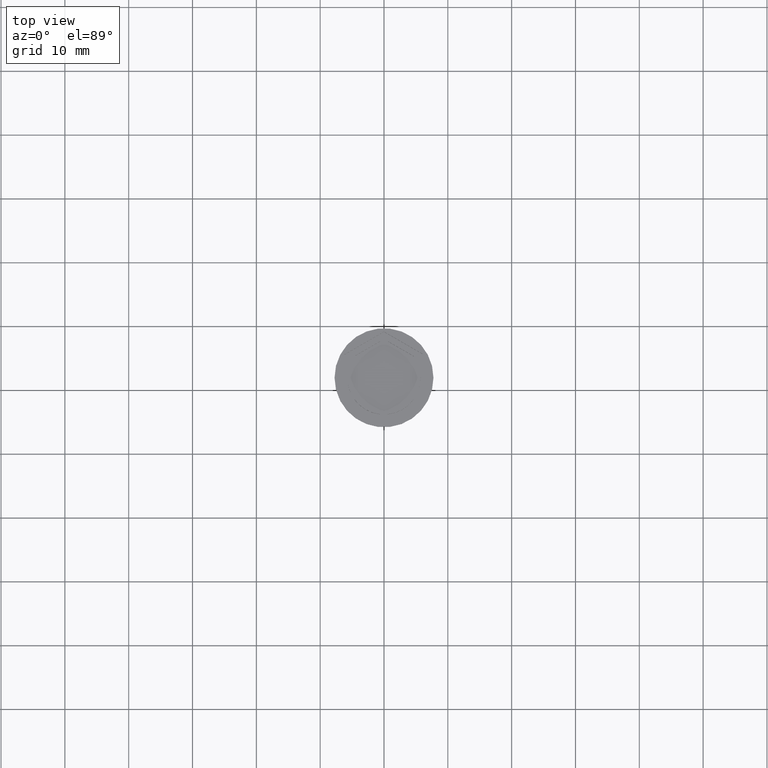
[diagram: clean part render]
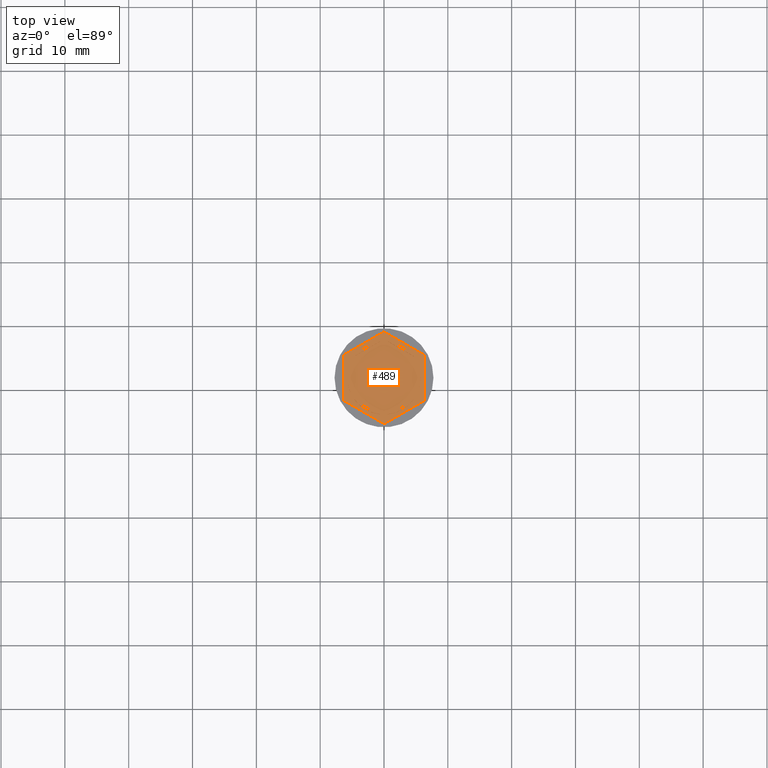
[diagram: same view with one face highlighted and labeled with its STEP entity id]
A machine part, top view. The second image highlights one B-rep face of the part: STEP entity #489.
In plain terms, the highlighted planar face has unit normal (0, 0, 1).
Its self-contained STEP definition (entity closure, byte-faithful):
#6 = VERTEX_POINT ( 'NONE', #261 ) ;
#9 = VERTEX_POINT ( 'NONE', #1690 ) ;
#12 = LINE ( 'NONE', #1985, #438 ) ;
#22 = CARTESIAN_POINT ( 'NONE',  ( 0.000000000000000000, 0.000000000000000000, -1.000000000000000000 ) ) ;
#34 = EDGE_CURVE ( 'NONE', #762, #6, #965, .T. ) ;
#41 = VERTEX_POINT ( 'NONE', #1351 ) ;
#69 = EDGE_CURVE ( 'NONE', #395, #1867, #1545, .T. ) ;
#92 = LINE ( 'NONE', #1496, #640 ) ;
#98 = VERTEX_POINT ( 'NONE', #2242 ) ;
#131 = VERTEX_POINT ( 'NONE', #1730 ) ;
#152 = PLANE ( 'NONE',  #977 ) ;
#167 = VERTEX_POINT ( 'NONE', #292 ) ;
#219 = DIRECTION ( 'NONE',  ( 0.000000000000000000, 0.000000000000000000, 1.000000000000000000 ) ) ;
#225 = VERTEX_POINT ( 'NONE', #2113 ) ;
#239 = EDGE_CURVE ( 'NONE', #1867, #395, #705, .T. ) ;
#245 = DIRECTION ( 'NONE',  ( 1.000000000000000000, 0.000000000000000000, 0.000000000000000000 ) ) ;
#261 = CARTESIAN_POINT ( 'NONE',  ( 5.249999999999997335, -2.345207879911720639, -1.000000000000000888 ) ) ;
#272 = DIRECTION ( 'NONE',  ( -1.430775808321103440E-16, -1.000000000000000000, 0.000000000000000000 ) ) ;
#275 = EDGE_LOOP ( 'NONE', ( #937, #1196 ) ) ;
#292 = CARTESIAN_POINT ( 'NONE',  ( 4.656009601158988431, 3.374029429912448919, -1.000000000000000888 ) ) ;
#314 = DIRECTION ( 'NONE',  ( 1.000000000000000000, 0.000000000000000000, 0.000000000000000000 ) ) ;
#319 = EDGE_CURVE ( 'NONE', #98, #1942, #678, .T. ) ;
#329 = ORIENTED_EDGE ( 'NONE', *, *, #1993, .F. ) ;
#355 = VERTEX_POINT ( 'NONE', #1021 ) ;
#364 = AXIS2_PLACEMENT_3D ( 'NONE', #839, #2261, #636 ) ;
#374 = DIRECTION ( 'NONE',  ( 0.8660254037844387076, 0.4999999999999999445, -0.000000000000000000 ) ) ;
#395 = VERTEX_POINT ( 'NONE', #1543 ) ;
#406 = AXIS2_PLACEMENT_3D ( 'NONE', #2063, #1760, #1907 ) ;
#411 = EDGE_CURVE ( 'NONE', #1942, #98, #1957, .T. ) ;
#438 = VECTOR ( 'NONE', #1288, 1000.000000000000000 ) ;
#468 = DIRECTION ( 'NONE',  ( 0.000000000000000000, 0.000000000000000000, 1.000000000000000000 ) ) ;
#479 = FACE_BOUND ( 'NONE', #1938, .T. ) ;
#482 = EDGE_CURVE ( 'NONE', #1413, #1412, #803, .T. ) ;
#489 = ADVANCED_FACE ( 'NONE', ( #479, #1929, #2297, #1256, #1569, #708, #672 ), #152, .T. ) ;
#535 = DIRECTION ( 'NONE',  ( -0.8660254037844388186, 0.4999999999999997224, 0.000000000000000000 ) ) ;
#562 = EDGE_CURVE ( 'NONE', #1643, #2243, #850, .T. ) ;
#621 = ORIENTED_EDGE ( 'NONE', *, *, #657, .F. ) ;
#629 = EDGE_CURVE ( 'NONE', #845, #1643, #1695, .T. ) ;
#636 = DIRECTION ( 'NONE',  ( 1.000000000000000000, 0.000000000000000000, 0.000000000000000000 ) ) ;
#640 = VECTOR ( 'NONE', #1337, 1000.000000000000000 ) ;
#654 = EDGE_CURVE ( 'NONE', #41, #9, #12, .T. ) ;
#655 = ORIENTED_EDGE ( 'NONE', *, *, #69, .F. ) ;
#657 = EDGE_CURVE ( 'NONE', #167, #131, #745, .T. ) ;
#672 = FACE_OUTER_BOUND ( 'NONE', #1457, .T. ) ;
#678 = LINE ( 'NONE', #1414, #1808 ) ;
#700 = DIRECTION ( 'NONE',  ( 1.000000000000000000, 0.000000000000000000, 0.000000000000000000 ) ) ;
#705 = CIRCLE ( 'NONE', #1172, 5.750000000000000000 ) ;
#708 = FACE_BOUND ( 'NONE', #1851, .T. ) ;
#745 = CIRCLE ( 'NONE', #939, 5.750000000000000000 ) ;
#762 = VERTEX_POINT ( 'NONE', #926 ) ;
#789 = VECTOR ( 'NONE', #1833, 1000.000000000000114 ) ;
#790 = CARTESIAN_POINT ( 'NONE',  ( -6.249999999999999112, -3.608439182435161374, -1.000000000000000000 ) ) ;
#803 = LINE ( 'NONE', #1394, #2147 ) ;
#818 = EDGE_CURVE ( 'NONE', #1412, #1731, #970, .T. ) ;
#833 = DIRECTION ( 'NONE',  ( -0.8660254037844387076, -0.4999999999999997224, 0.000000000000000000 ) ) ;
#839 = CARTESIAN_POINT ( 'NONE',  ( 0.000000000000000000, 0.000000000000000000, -1.000000000000000000 ) ) ;
#845 = VERTEX_POINT ( 'NONE', #1156 ) ;
#850 = LINE ( 'NONE', #1764, #1659 ) ;
#853 = ORIENTED_EDGE ( 'NONE', *, *, #562, .F. ) ;
#863 = EDGE_CURVE ( 'NONE', #6, #762, #1586, .T. ) ;
#917 = CARTESIAN_POINT ( 'NONE',  ( -6.249999999999999112, -3.608439182435161374, -1.000000000000000000 ) ) ;
#923 = ORIENTED_EDGE ( 'NONE', *, *, #818, .T. ) ;
#924 = CARTESIAN_POINT ( 'NONE',  ( 5.249999999999997335, 3.031088913245537864, -1.000000000000000888 ) ) ;
#926 = CARTESIAN_POINT ( 'NONE',  ( 5.249999999999997335, 2.345207879911718862, -1.000000000000000888 ) ) ;
#937 = ORIENTED_EDGE ( 'NONE', *, *, #411, .F. ) ;
#939 = AXIS2_PLACEMENT_3D ( 'NONE', #1816, #219, #1485 ) ;
#965 = LINE ( 'NONE', #1316, #1093 ) ;
#970 = LINE ( 'NONE', #790, #1880 ) ;
#977 = AXIS2_PLACEMENT_3D ( 'NONE', #1230, #1594, #1408 ) ;
#984 = CIRCLE ( 'NONE', #1637, 5.750000000000000000 ) ;
#1021 = CARTESIAN_POINT ( 'NONE',  ( -4.656009601158989319, 3.374029429912446698, -1.000000000000000888 ) ) ;
#1079 = ORIENTED_EDGE ( 'NONE', *, *, #2009, .F. ) ;
#1093 = VECTOR ( 'NONE', #272, 1000.000000000000000 ) ;
#1153 = DIRECTION ( 'NONE',  ( -0.8660254037844384856, 0.5000000000000002220, 0.000000000000000000 ) ) ;
#1156 = CARTESIAN_POINT ( 'NONE',  ( -5.750000000000000000, 0.000000000000000000, -1.000000000000000000 ) ) ;
#1162 = EDGE_CURVE ( 'NONE', #9, #225, #2159, .T. ) ;
#1172 = AXIS2_PLACEMENT_3D ( 'NONE', #1261, #468, #700 ) ;
#1177 = VECTOR ( 'NONE', #374, 1000.000000000000000 ) ;
#1186 = CARTESIAN_POINT ( 'NONE',  ( -5.249999999999999112, -3.031088913245534311, -1.000000000000000888 ) ) ;
#1196 = ORIENTED_EDGE ( 'NONE', *, *, #319, .F. ) ;
#1229 = CARTESIAN_POINT ( 'NONE',  ( 0.000000000000000000, 0.000000000000000000, -1.000000000000000000 ) ) ;
#1230 = CARTESIAN_POINT ( 'NONE',  ( 0.000000000000000000, 0.000000000000000000, -1.000000000000000000 ) ) ;
#1243 = ORIENTED_EDGE ( 'NONE', *, *, #654, .T. ) ;
#1255 = VECTOR ( 'NONE', #535, 1000.000000000000000 ) ;
#1256 = FACE_BOUND ( 'NONE', #1871, .T. ) ;
#1261 = CARTESIAN_POINT ( 'NONE',  ( 0.000000000000000000, 0.000000000000000000, -1.000000000000000000 ) ) ;
#1271 = ORIENTED_EDGE ( 'NONE', *, *, #1638, .F. ) ;
#1287 = CARTESIAN_POINT ( 'NONE',  ( 8.673617379884035472E-16, 6.062177826491070398, -1.000000000000000888 ) ) ;
#1288 = DIRECTION ( 'NONE',  ( 2.403703357979454647E-16, 1.000000000000000000, 0.000000000000000000 ) ) ;
#1295 = ORIENTED_EDGE ( 'NONE', *, *, #1437, .F. ) ;
#1302 = ORIENTED_EDGE ( 'NONE', *, *, #863, .F. ) ;
#1316 = CARTESIAN_POINT ( 'NONE',  ( 5.249999999999996447, -3.031088913245536975, -1.000000000000000888 ) ) ;
#1337 = DIRECTION ( 'NONE',  ( 0.8660254037844385966, 0.5000000000000001110, 0.000000000000000000 ) ) ;
#1351 = CARTESIAN_POINT ( 'NONE',  ( 6.249999999999998224, -3.608439182435161374, -1.000000000000000000 ) ) ;
#1376 = ORIENTED_EDGE ( 'NONE', *, *, #482, .T. ) ;
#1394 = CARTESIAN_POINT ( 'NONE',  ( -6.249999999999999112, 3.608439182435158710, -1.000000000000000000 ) ) ;
#1408 = DIRECTION ( 'NONE',  ( 1.000000000000000000, 0.000000000000000000, -0.000000000000000000 ) ) ;
#1412 = VERTEX_POINT ( 'NONE', #917 ) ;
#1413 = VERTEX_POINT ( 'NONE', #2321 ) ;
#1414 = CARTESIAN_POINT ( 'NONE',  ( -1.734723475976807094E-15, -6.062177826491069510, -1.000000000000000888 ) ) ;
#1436 = VECTOR ( 'NONE', #1153, 1000.000000000000114 ) ;
#1437 = EDGE_CURVE ( 'NONE', #355, #1805, #1628, .T. ) ;
#1441 = LINE ( 'NONE', #924, #789 ) ;
#1452 = DIRECTION ( 'NONE',  ( 0.000000000000000000, 0.000000000000000000, 1.000000000000000000 ) ) ;
#1457 = EDGE_LOOP ( 'NONE', ( #1592, #2251, #1376, #923, #1676, #1243 ) ) ;
#1485 = DIRECTION ( 'NONE',  ( 1.000000000000000000, 0.000000000000000000, 0.000000000000000000 ) ) ;
#1496 = CARTESIAN_POINT ( 'NONE',  ( 8.729740977282959667E-16, -7.216878364870321860, -1.000000000000000000 ) ) ;
#1522 = CARTESIAN_POINT ( 'NONE',  ( -5.249999999999999112, 2.345207879911715310, -1.000000000000000888 ) ) ;
#1543 = CARTESIAN_POINT ( 'NONE',  ( -0.5939903988410105695, -5.719237309824160675, -1.000000000000000888 ) ) ;
#1545 = LINE ( 'NONE', #1186, #1436 ) ;
#1553 = CARTESIAN_POINT ( 'NONE',  ( -5.249999999999999112, -2.345207879911715310, -1.000000000000000888 ) ) ;
#1569 = FACE_BOUND ( 'NONE', #1891, .T. ) ;
#1580 = DIRECTION ( 'NONE',  ( 0.000000000000000000, -1.000000000000000000, 0.000000000000000000 ) ) ;
#1586 = CIRCLE ( 'NONE', #2187, 5.750000000000000000 ) ;
#1592 = ORIENTED_EDGE ( 'NONE', *, *, #1162, .T. ) ;
#1594 = DIRECTION ( 'NONE',  ( 0.000000000000000000, 0.000000000000000000, 1.000000000000000000 ) ) ;
#1605 = DIRECTION ( 'NONE',  ( 0.000000000000000000, 1.000000000000000000, 0.000000000000000000 ) ) ;
#1628 = LINE ( 'NONE', #1287, #1177 ) ;
#1631 = CARTESIAN_POINT ( 'NONE',  ( 6.250000000000000000, 3.608439182435161374, -1.000000000000000000 ) ) ;
#1637 = AXIS2_PLACEMENT_3D ( 'NONE', #1229, #1939, #314 ) ;
#1638 = EDGE_CURVE ( 'NONE', #2243, #845, #2191, .T. ) ;
#1643 = VERTEX_POINT ( 'NONE', #1553 ) ;
#1648 = EDGE_CURVE ( 'NONE', #225, #1413, #1937, .T. ) ;
#1659 = VECTOR ( 'NONE', #1605, 1000.000000000000000 ) ;
#1662 = DIRECTION ( 'NONE',  ( 1.000000000000000000, 0.000000000000000000, 0.000000000000000000 ) ) ;
#1676 = ORIENTED_EDGE ( 'NONE', *, *, #2238, .T. ) ;
#1690 = CARTESIAN_POINT ( 'NONE',  ( 6.250000000000000000, 3.608439182435161374, -1.000000000000000000 ) ) ;
#1694 = DIRECTION ( 'NONE',  ( 0.8660254037844385966, -0.4999999999999998890, 0.000000000000000000 ) ) ;
#1695 = CIRCLE ( 'NONE', #1915, 5.750000000000000000 ) ;
#1712 = DIRECTION ( 'NONE',  ( 0.000000000000000000, 0.000000000000000000, 1.000000000000000000 ) ) ;
#1713 = ORIENTED_EDGE ( 'NONE', *, *, #629, .F. ) ;
#1730 = CARTESIAN_POINT ( 'NONE',  ( 0.5939903988410126789, 5.719237309824160675, -1.000000000000000888 ) ) ;
#1731 = VERTEX_POINT ( 'NONE', #2271 ) ;
#1750 = DIRECTION ( 'NONE',  ( -0.8660254037844385966, -0.5000000000000001110, 0.000000000000000000 ) ) ;
#1760 = DIRECTION ( 'NONE',  ( 0.000000000000000000, 0.000000000000000000, 1.000000000000000000 ) ) ;
#1764 = CARTESIAN_POINT ( 'NONE',  ( -5.249999999999999112, 3.031088913245535199, -1.000000000000000888 ) ) ;
#1805 = VERTEX_POINT ( 'NONE', #2330 ) ;
#1808 = VECTOR ( 'NONE', #833, 1000.000000000000114 ) ;
#1815 = VECTOR ( 'NONE', #1750, 1000.000000000000114 ) ;
#1816 = CARTESIAN_POINT ( 'NONE',  ( 0.000000000000000000, 0.000000000000000000, -1.000000000000000000 ) ) ;
#1833 = DIRECTION ( 'NONE',  ( 0.8660254037844387076, -0.4999999999999998335, 0.000000000000000000 ) ) ;
#1839 = EDGE_LOOP ( 'NONE', ( #1302, #1943 ) ) ;
#1851 = EDGE_LOOP ( 'NONE', ( #329, #1295 ) ) ;
#1867 = VERTEX_POINT ( 'NONE', #2129 ) ;
#1871 = EDGE_LOOP ( 'NONE', ( #1970, #655 ) ) ;
#1880 = VECTOR ( 'NONE', #1694, 1000.000000000000227 ) ;
#1891 = EDGE_LOOP ( 'NONE', ( #1271, #853, #1713 ) ) ;
#1907 = DIRECTION ( 'NONE',  ( 1.000000000000000000, 0.000000000000000000, 0.000000000000000000 ) ) ;
#1915 = AXIS2_PLACEMENT_3D ( 'NONE', #22, #1452, #1662 ) ;
#1929 = FACE_BOUND ( 'NONE', #1839, .T. ) ;
#1937 = LINE ( 'NONE', #2280, #1815 ) ;
#1938 = EDGE_LOOP ( 'NONE', ( #621, #1079 ) ) ;
#1939 = DIRECTION ( 'NONE',  ( 0.000000000000000000, 0.000000000000000000, 1.000000000000000000 ) ) ;
#1942 = VERTEX_POINT ( 'NONE', #2311 ) ;
#1943 = ORIENTED_EDGE ( 'NONE', *, *, #34, .F. ) ;
#1957 = CIRCLE ( 'NONE', #364, 5.750000000000000000 ) ;
#1970 = ORIENTED_EDGE ( 'NONE', *, *, #239, .F. ) ;
#1985 = CARTESIAN_POINT ( 'NONE',  ( 6.249999999999998224, -3.608439182435161374, -1.000000000000000000 ) ) ;
#1993 = EDGE_CURVE ( 'NONE', #1805, #355, #984, .T. ) ;
#2009 = EDGE_CURVE ( 'NONE', #131, #167, #1441, .T. ) ;
#2048 = CARTESIAN_POINT ( 'NONE',  ( 0.000000000000000000, 0.000000000000000000, -1.000000000000000000 ) ) ;
#2063 = CARTESIAN_POINT ( 'NONE',  ( 0.000000000000000000, 0.000000000000000000, -1.000000000000000000 ) ) ;
#2113 = CARTESIAN_POINT ( 'NONE',  ( 0.000000000000000000, 7.216878364870320084, -1.000000000000000000 ) ) ;
#2129 = CARTESIAN_POINT ( 'NONE',  ( -4.656009601158991096, -3.374029429912444034, -1.000000000000000888 ) ) ;
#2147 = VECTOR ( 'NONE', #1580, 1000.000000000000000 ) ;
#2159 = LINE ( 'NONE', #1631, #1255 ) ;
#2187 = AXIS2_PLACEMENT_3D ( 'NONE', #2048, #1712, #245 ) ;
#2191 = CIRCLE ( 'NONE', #406, 5.750000000000000000 ) ;
#2238 = EDGE_CURVE ( 'NONE', #1731, #41, #92, .T. ) ;
#2242 = CARTESIAN_POINT ( 'NONE',  ( 4.656009601158990208, -3.374029429912445810, -1.000000000000000888 ) ) ;
#2243 = VERTEX_POINT ( 'NONE', #1522 ) ;
#2251 = ORIENTED_EDGE ( 'NONE', *, *, #1648, .T. ) ;
#2261 = DIRECTION ( 'NONE',  ( 0.000000000000000000, 0.000000000000000000, 1.000000000000000000 ) ) ;
#2271 = CARTESIAN_POINT ( 'NONE',  ( 8.729740977282959667E-16, -7.216878364870321860, -1.000000000000000000 ) ) ;
#2280 = CARTESIAN_POINT ( 'NONE',  ( 0.000000000000000000, 7.216878364870320084, -1.000000000000000000 ) ) ;
#2297 = FACE_BOUND ( 'NONE', #275, .T. ) ;
#2311 = CARTESIAN_POINT ( 'NONE',  ( 0.5939903988410074609, -5.719237309824160675, -1.000000000000000888 ) ) ;
#2321 = CARTESIAN_POINT ( 'NONE',  ( -6.249999999999999112, 3.608439182435158710, -1.000000000000000000 ) ) ;
#2330 = CARTESIAN_POINT ( 'NONE',  ( -0.5939903988410105695, 5.719237309824159787, -1.000000000000000888 ) ) ;